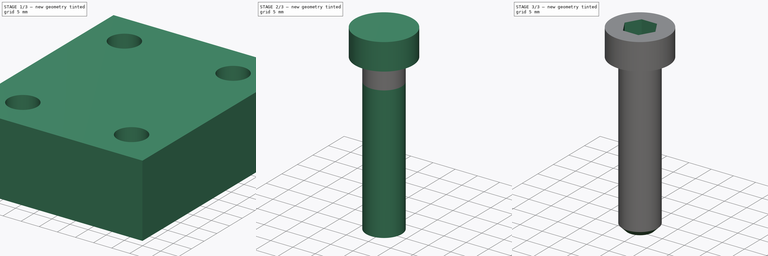
[diagram: build sequence overview — one tinted view per stage of 3, left to right]
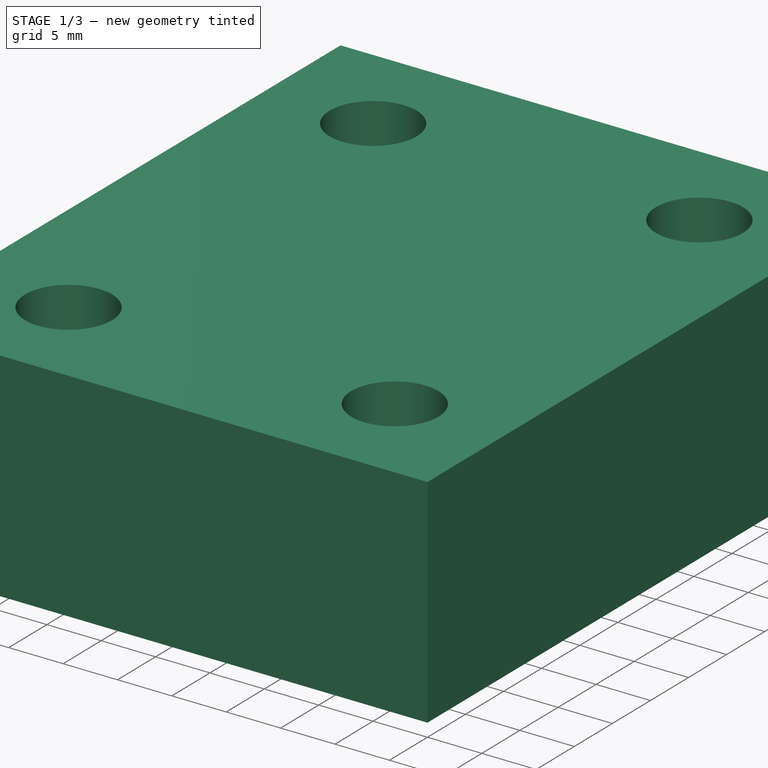
[diagram: stage 1 of 3 — iso view after this stage's code; geometry added in this stage tinted green]
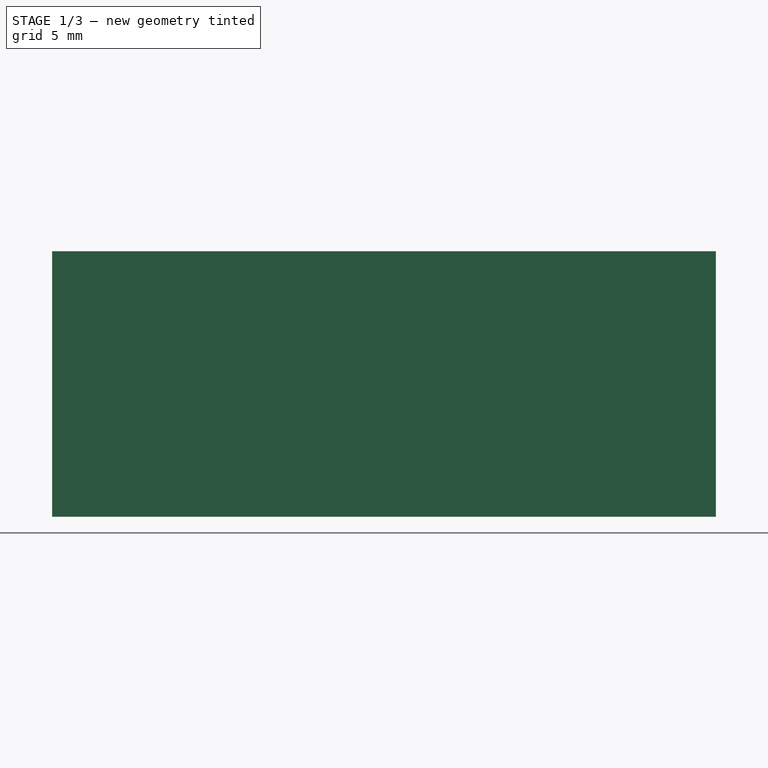
[diagram: stage 1 of 3 — front view after this stage's code; geometry added in this stage tinted green]
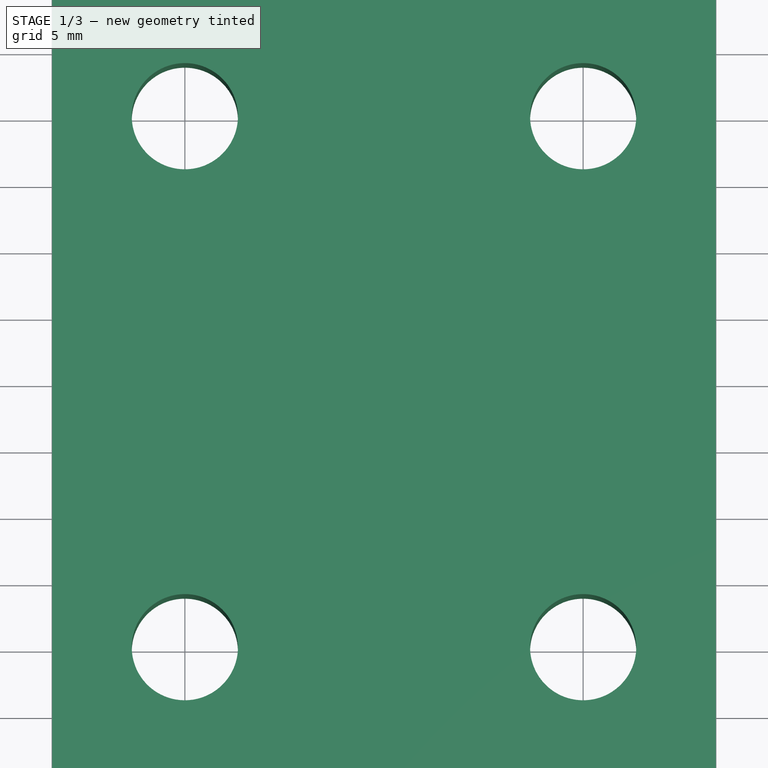
[diagram: stage 1 of 3 — top view after this stage's code; geometry added in this stage tinted green]
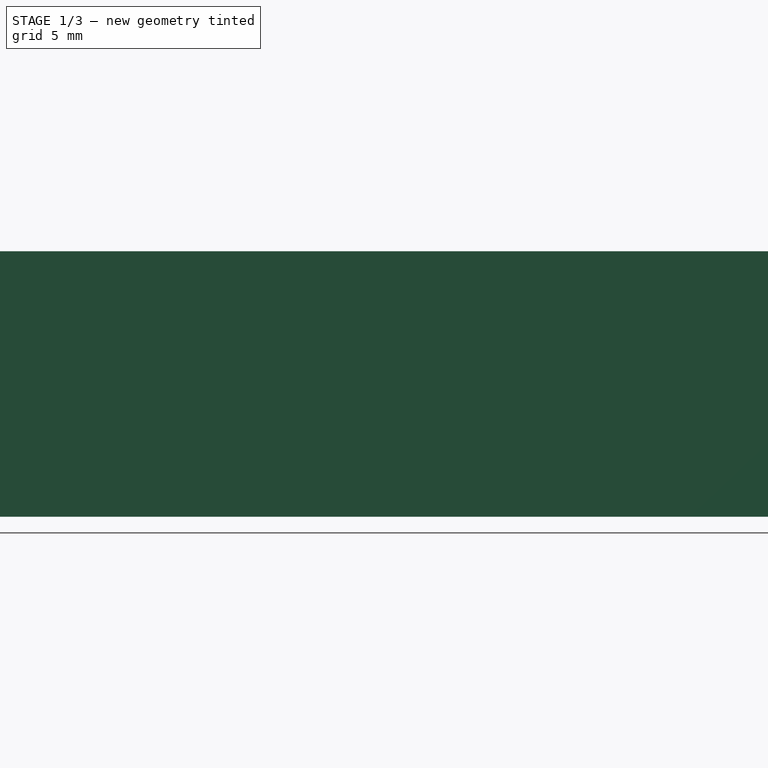
[diagram: stage 1 of 3 — right view after this stage's code; geometry added in this stage tinted green]
FCSTD DOCUMENT  (FreeCAD 0.19R17089 +1543 (Git))
Label: asm3-links-2
License: All rights reserved
LicenseURL: http://en.wikipedia.org/wiki/All_rights_reserved
objects: Part::FeaturePython×43, App::FeaturePython×42, App::Link×9, App::LinkElement×8, Sketcher::SketchObject×5, PartDesign::Pad×4, PartDesign::Body×2, PartDesign::Pocket×1, PartDesign::Chamfer×1, App::DocumentObjectGroup×1
note: 56 computed .brp shape members not serialized (recipe doc carries the construction recipe); baked Part::Feature solids carry a one-line shape summary decoded from their .brp
EXTERNAL_REF file=asm3-links-2-lib.FCStd obj=Assembly
EXTERNAL_REF file=asm3-links-2-lib.FCStd obj=Assembly001

FEATURE [Sketcher::SketchObject] Sketch002
  MapMode = 5
  Support = -> [XY_Plane002]
  sketch-geometry (1):
    g0: Circle CenterX=0 CenterY=0 CenterZ=0 NormalX=0 NormalY=0 NormalZ=1 AngleXU=0 Radius=4
  constraints (2):
    c: Coincident(g0,g-1)
    c: Diameter(g0) = 8  'D1'
FEATURE [PartDesign::Pad] Pad002
  ClaimChildren = false
  Length = 5
  Length2 = 100
  Profile = -> Sketch002
  Reversed = true
  Type = 0
FEATURE [PartDesign::Body] Body002
  Group = -> [Sketch002,Pad002,Sketch003,Pad003,Sketch004,Pad004,Sketch005,Pocket,Chamfer]
  Origin = -> Origin002
  Tip = -> Chamfer
FEATURE [App::FeaturePython] Constraints002  # WARN: FeaturePython — macro-defined, semantics opaque (R4)
  GroupMode = 1
  _Version = 1
FEATURE [Part::FeaturePython] Parts002  # WARN: FeaturePython — macro-defined, semantics opaque (R4)
  Group = -> [Body002]
  GroupMode = 0
FEATURE [Sketcher::SketchObject] Sketch006
  MapMode = 5
  Support = -> [XY_Plane003]
  sketch-geometry (8):
    g0: Circle CenterX=-15 CenterY=20 CenterZ=0 NormalX=0 NormalY=0 NormalZ=1 AngleXU=0 Radius=4
    g1: Circle CenterX=15 CenterY=20 CenterZ=0 NormalX=0 NormalY=0 NormalZ=1 AngleXU=0 Radius=4
    g2: Circle CenterX=15 CenterY=-20 CenterZ=0 NormalX=0 NormalY=0 NormalZ=1 AngleXU=0 Radius=4
    g3: Circle CenterX=-15 CenterY=-20 CenterZ=0 NormalX=0 NormalY=0 NormalZ=1 AngleXU=0 Radius=4
    g4: LineSegment StartX=-25 StartY=30 StartZ=0 EndX=25 EndY=30 EndZ=0
    g5: LineSegment StartX=25 StartY=30 StartZ=0 EndX=25 EndY=-30 EndZ=0
    g6: LineSegment StartX=25 StartY=-30 StartZ=0 EndX=-25 EndY=-30 EndZ=0
    g7: LineSegment StartX=-25 StartY=-30 StartZ=0 EndX=-25 EndY=30 EndZ=0
  constraints (19):
    c: Equal(g0,g1)
    c: Equal(g1,g2)
    c: Equal(g2,g3)
    c: Diameter(g0) = 8  'BHD'
    c: Symmetric(g0,g1,g-2)
    c: Symmetric(g1,g2,g-1)
    c: Symmetric(g0,g3,g-1)
    c: Coincident(g4,g5)
    c: Coincident(g5,g6)
    c: Coincident(g6,g7)
    c: Coincident(g7,g4)
    c: Horizontal(g6)
    c: Vertical(g7)
    c: Symmetric(g4,g4,g-2)
    c: Symmetric(g4,g5,g-1)
    c: Distance(g3,g2) = 30  'L1'
    c: Distance(g4) = 50  'L2'
    c: Distance(g1,g2) = 40  'W1'
    c: Distance(g7) = 60  'W2'
FEATURE [PartDesign::Pad] Pad005
  ClaimChildren = false
  Length = 20
  Length2 = 100
  Profile = -> Sketch006
  Reversed = true
  Type = 0
FEATURE [PartDesign::Body] Body003
  Group = -> [Sketch006,Pad005]
  Origin = -> Origin003
  Tip = -> Pad005
FEATURE [App::FeaturePython] Constraints003  # WARN: FeaturePython — macro-defined, semantics opaque (R4)
  GroupMode = 1
  _Version = 1
FEATURE [Part::FeaturePython] Parts003  # WARN: FeaturePython — macro-defined, semantics opaque (R4)
  Group = -> [Body003]
  GroupMode = 0
FEATURE [App::Link] Link  label="Assembly000 001"
  LinkPlacement = pos=(0,0,-2) rot=(0,0,1;0rad)
  LinkedObject = -> Link007
  Placement = pos=(0,0,-2) rot=(0,0,1;0rad)
FEATURE [App::Link] Link001  label="Assembly001 001"
  LinkedObject = -> Link008
FEATURE [Part::FeaturePython] Parts004  # WARN: FeaturePython — macro-defined, semantics opaque (R4)
  Group = -> [Link,Link001]
  GroupMode = 0
FEATURE [App::Link] Link002  label="Assembly000 002"
  LinkedObject = -> Link007
FEATURE [App::Link] Link003  label="Assembly002 001"
  LinkPlacement = pos=(0,0,2) rot=(0,0,1;0rad)
  LinkedObject = -> Assembly002
  Placement = pos=(0,0,2) rot=(0,0,1;0rad)
FEATURE [Part::FeaturePython] Parts005  # WARN: FeaturePython — macro-defined, semantics opaque (R4)
  Group = -> [Link002,Link003]
  GroupMode = 0
FEATURE [App::Link] Link004  label="Assembly003 001"
  LinkedObject = -> Assembly003
FEATURE [App::LinkElement] Link005_i0
  LinkPlacement = pos=(-15,20,0) rot=(0,0,1;0rad)
  LinkedObject = -> Assembly005
  Placement = pos=(-15,20,0) rot=(0,0,1;0rad)
FEATURE [App::LinkElement] Link005_i1
  LinkPlacement = pos=(15,20,0) rot=(0,0,1;0rad)
  LinkedObject = -> Assembly005
  Placement = pos=(15,20,0) rot=(0,0,1;0rad)
FEATURE [App::LinkElement] Link005_i2
  LinkPlacement = pos=(15,-20,0) rot=(0,0,1;0rad)
  LinkedObject = -> Assembly005
  Placement = pos=(15,-20,0) rot=(0,0,1;0rad)
FEATURE [App::LinkElement] Link005_i3
  LinkPlacement = pos=(-15,-20,0) rot=(0,0,1;0rad)
  LinkedObject = -> Assembly005
  Placement = pos=(-15,-20,0) rot=(0,0,1;0rad)
FEATURE [App::Link] Link005  label="Assembly005 001"
  ElementCount = 4
  ElementList = -> [Link005_i0,Link005_i1,Link005_i2,Link005_i3]
  LinkedObject = -> Assembly005
FEATURE [App::LinkElement] Link006_i0
  LinkPlacement = pos=(15,20,-33) rot=(0,-1,0;0rad)
  LinkedObject = -> Assembly004
  Placement = pos=(15,20,-33) rot=(0,-1,0;0rad)
FEATURE [App::LinkElement] Link006_i1
  LinkPlacement = pos=(-15,20,-33) rot=(0,-1,0;0rad)
  LinkedObject = -> Assembly004
  Placement = pos=(-15,20,-33) rot=(0,-1,0;0rad)
FEATURE [App::LinkElement] Link006_i2
  LinkPlacement = pos=(-15,-20,-33) rot=(0,-1,0;0rad)
  LinkedObject = -> Assembly004
  Placement = pos=(-15,-20,-33) rot=(0,-1,0;0rad)
FEATURE [App::LinkElement] Link006_i3
  LinkPlacement = pos=(15,-20,-33) rot=(0,-1,0;0rad)
  LinkedObject = -> Assembly004
  Placement = pos=(15,-20,-33) rot=(0,-1,0;0rad)
FEATURE [App::Link] Link006  label="Assembly004 001"
  ElementCount = 4
  ElementList = -> [Link006_i0,Link006_i1,Link006_i2,Link006_i3]
  LinkPlacement = pos=(8.1e-13,6.55651e-06,-55) rot=(0,1,0;3.14159rad)
  LinkedObject = -> Assembly004
  Placement = pos=(8.1e-13,6.55651e-06,-55) rot=(0,1,0;3.14159rad)
FEATURE [Part::FeaturePython] Parts006  # WARN: FeaturePython — macro-defined, semantics opaque (R4)
  Group = -> [Link004,Link005,Link006]
  GroupMode = 0
FEATURE [App::Link] Link007  label="Assembly000 003"
  LinkedObject = -> <external asm3-links-2-lib.FCStd>#Assembly
FEATURE [App::Link] Link008  label="Assembly001 002"
  LinkedObject = -> <external asm3-links-2-lib.FCStd>#Assembly001
FEATURE [App::DocumentObjectGroup] Group  label="Repository"
  Group = -> [Link007,Link008,Assembly002,Assembly003,Assembly004,Assembly005]
FEATURE [Part::FeaturePython] Assembly002  label="Assembly002 000"  # WARN: FeaturePython — macro-defined, semantics opaque (R4)
  AutoRelax = true
  BuildShape = 0
  Freeze = false
  Group = -> [Constraints002,Elements002,Parts002]
  GroupMode = 1
  SolverType = 1
  Verbose = false
  _SolverType = 1
  _Version = 1
FEATURE [App::FeaturePython] Elements002  # WARN: FeaturePython — macro-defined, semantics opaque (R4)
  Group = -> [Element004]
  GroupMode = 1
FEATURE [Part::FeaturePython] Element004  # link proxy (typed FeaturePython)
  Detach = false
  LinkTransform = true
  LinkedObject = -> Body002 [Pad002.Edge2]
  _Parent = -> Elements002
FEATURE [Part::FeaturePython] Assembly003  label="Assembly003 000"  # WARN: FeaturePython — macro-defined, semantics opaque (R4)
  AutoRelax = true
  BuildShape = 0
  Freeze = false
  Group = -> [Constraints003,Elements003,Parts003]
  GroupMode = 1
  SolverType = 1
  Verbose = false
  _SolverType = 1
  _Version = 1
FEATURE [App::FeaturePython] Elements003  # WARN: FeaturePython — macro-defined, semantics opaque (R4)
  Group = -> [Element005,Element006,Element007,Element008,Element009,Element010,Element011,Element012,Element015]
  GroupMode = 1
FEATURE [Part::FeaturePython] Element005  # link proxy (typed FeaturePython)
  Detach = false
  LinkTransform = true
  LinkedObject = -> Body003 [Pad005.Edge23]
  _Parent = -> Elements003
FEATURE [Part::FeaturePython] Element006  # link proxy (typed FeaturePython)
  Detach = false
  LinkTransform = true
  LinkedObject = -> Body003 [Pad005.Edge20]
  _Parent = -> Elements003
FEATURE [Part::FeaturePython] Element007  # link proxy (typed FeaturePython)
  Detach = false
  LinkTransform = true
  LinkedObject = -> Body003 [Pad005.Edge17]
  _Parent = -> Elements003
FEATURE [Part::FeaturePython] Element008  # link proxy (typed FeaturePython)
  Detach = false
  LinkTransform = true
  LinkedObject = -> Body003 [Pad005.Edge14]
  _Parent = -> Elements003
FEATURE [Part::FeaturePython] Element009  # link proxy (typed FeaturePython)
  Detach = false
  LinkTransform = true
  LinkedObject = -> Body003 [Pad005.Edge24]
  _Parent = -> Elements003
FEATURE [Part::FeaturePython] Element010  # link proxy (typed FeaturePython)
  Detach = false
  LinkTransform = true
  LinkedObject = -> Body003 [Pad005.Edge21]
  _Parent = -> Elements003
FEATURE [Part::FeaturePython] Element011  # link proxy (typed FeaturePython)
  Detach = false
  LinkTransform = true
  LinkedObject = -> Body003 [Pad005.Edge18]
  _Parent = -> Elements003
FEATURE [Part::FeaturePython] Element012  # link proxy (typed FeaturePython)
  Detach = false
  LinkTransform = true
  LinkedObject = -> Body003 [Pad005.Edge15]
  _Parent = -> Elements003
FEATURE [Part::FeaturePython] Assembly004  label="Assembly004 000"  # WARN: FeaturePython — macro-defined, semantics opaque (R4)
  AutoRelax = true
  BuildShape = 0
  Freeze = false
  Group = -> [Constraints004,Elements004,Parts004]
  GroupMode = 1
  SolverType = 1
  Verbose = false
  _SolverType = 1
  _Version = 1
FEATURE [App::FeaturePython] Constraints004  # WARN: FeaturePython — macro-defined, semantics opaque (R4)
  Group = -> [Constraint]
  GroupMode = 1
  _Version = 1
FEATURE [App::FeaturePython] Elements004  # WARN: FeaturePython — macro-defined, semantics opaque (R4)
  Group = -> [_Element,_Element001,Element013]
  GroupMode = 1
FEATURE [App::FeaturePython] Constraint  label="PlaneCoincident"  # WARN: FeaturePython — macro-defined, semantics opaque (R4)
  Angle = 0
  AnglePitch = 0
  AngleRoll = 0
  Cascade = false
  ConstraintType = 2
  Disabled = false
  Group = -> [ElementLink,ElementLink001]
  GroupMode = 1
  LockAngle = false
  Multiply = false
  OffsetX = 0
  OffsetY = 0
  _ConstraintType = 35
  _Parent = -> Constraints004
FEATURE [App::FeaturePython] ElementLink  label="_Element"  # link proxy (typed FeaturePython)
  LinkTransform = true
  LinkedObject = -> _Element
  _Parent = -> Constraint
FEATURE [Part::FeaturePython] _Element  # link proxy (typed FeaturePython)
  Detach = false
  LinkTransform = true
  LinkedObject = -> Link001 [1.$Element002.]
  _Parent = -> Elements004
FEATURE [App::FeaturePython] ElementLink001  label="_Element001"  # link proxy (typed FeaturePython)
  LinkTransform = true
  LinkedObject = -> _Element001
  _Parent = -> Constraint
FEATURE [Part::FeaturePython] _Element001  # link proxy (typed FeaturePython)
  Detach = false
  LinkTransform = true
  LinkedObject = -> Link [1.$Element001.]
  _Parent = -> Elements004
FEATURE [Part::FeaturePython] Element013  # link proxy (typed FeaturePython)
  Detach = false
  LinkTransform = true
  LinkedObject = -> Link [1.$Element.]
  _Parent = -> Elements004
FEATURE [Part::FeaturePython] Assembly005  label="Assembly005 000"  # WARN: FeaturePython — macro-defined, semantics opaque (R4)
  AutoRelax = true
  BuildShape = 0
  Freeze = false
  Group = -> [Constraints005,Elements005,Parts005]
  GroupMode = 1
  SolverType = 1
  Verbose = false
  _SolverType = 1
  _Version = 1
FEATURE [App::FeaturePython] Constraints005  # WARN: FeaturePython — macro-defined, semantics opaque (R4)
  Group = -> [Constraint001]
  GroupMode = 1
  _Version = 1
FEATURE [App::FeaturePython] Elements005  # WARN: FeaturePython — macro-defined, semantics opaque (R4)
  Group = -> [_Element002,_Element003,Element014]
  GroupMode = 1
FEATURE [App::FeaturePython] Constraint001  label="PlaneCoincident001"  # WARN: FeaturePython — macro-defined, semantics opaque (R4)
  Angle = 0
  AnglePitch = 0
  AngleRoll = 0
  Cascade = false
  ConstraintType = 2
  Disabled = false
  Group = -> [ElementLink002,ElementLink003]
  GroupMode = 1
  LockAngle = false
  Multiply = false
  OffsetX = 0
  OffsetY = 0
  _ConstraintType = 35
  _Parent = -> Constraints005
FEATURE [App::FeaturePython] ElementLink002  label="_Element002"  # link proxy (typed FeaturePython)
  LinkTransform = true
  LinkedObject = -> _Element002
  _Parent = -> Constraint001
FEATURE [Part::FeaturePython] _Element002  # link proxy (typed FeaturePython)
  Detach = false
  LinkTransform = true
  LinkedObject = -> Link002 [1.$Element001.]
  _Parent = -> Elements005
FEATURE [App::FeaturePython] ElementLink003  label="_Element003"  # link proxy (typed FeaturePython)
  LinkTransform = true
  LinkedObject = -> _Element003
  _Parent = -> Constraint001
FEATURE [Part::FeaturePython] _Element003  # link proxy (typed FeaturePython)
  Detach = false
  LinkTransform = true
  LinkedObject = -> Link003 [1.$Element004.]
  _Parent = -> Elements005
FEATURE [Part::FeaturePython] Element014  # link proxy (typed FeaturePython)
  Detach = false
  LinkTransform = true
  LinkedObject = -> Link002 [1.$Element.]
  _Parent = -> Elements005
FEATURE [Part::FeaturePython] Assembly006  label="Assembly006 000"  # WARN: FeaturePython — macro-defined, semantics opaque (R4)
  AutoRelax = true
  BuildShape = 0
  Freeze = false
  Group = -> [Constraints006,Elements006,Parts006]
  GroupMode = 1
  SolverType = 1
  Verbose = false
  _SolverType = 1
  _Version = 1
FEATURE [App::FeaturePython] Constraints006  # WARN: FeaturePython — macro-defined, semantics opaque (R4)
  Group = -> [Constraint002,Constraint003,Constraint004,Constraint005,Constraint006,Constraint007,Constraint008,Constraint009,Constraint010]
  GroupMode = 1
  _Version = 1
FEATURE [App::FeaturePython] Elements006  # WARN: FeaturePython — macro-defined, semantics opaque (R4)
  Group = -> [_Element004,_Element005,_Element006,_Element007,_Element008,_Element009,_Element010,_Element011,_Element012,_Element013,_Element014,_Element015,_Element016,_Element017,_Element018,_Element019,_Element020]
  GroupMode = 1
FEATURE [App::FeaturePython] Constraint002  label="Locked"  # WARN: FeaturePython — macro-defined, semantics opaque (R4)
  ConstraintType = 0
  Disabled = false
  Group = -> [ElementLink004]
  GroupMode = 1
  _ConstraintType = 0
  _Parent = -> Constraints006
FEATURE [App::FeaturePython] ElementLink004  label="_Element004"  # link proxy (typed FeaturePython)
  LinkTransform = true
  LinkedObject = -> _Element004
  _Parent = -> Constraint002
FEATURE [Part::FeaturePython] Element015  # link proxy (typed FeaturePython)
  Detach = false
  LinkTransform = true
  LinkedObject = -> Body003 [Pad005.Face9]
  _Parent = -> Elements003
FEATURE [Part::FeaturePython] _Element004  # link proxy (typed FeaturePython)
  Detach = false
  LinkTransform = true
  LinkedObject = -> Link004 [1.$Element015.]
  _Parent = -> Elements006
FEATURE [App::FeaturePython] Constraint003  label="PlaneCoincident002"  # WARN: FeaturePython — macro-defined, semantics opaque (R4)
  Angle = 0
  AnglePitch = 0
  AngleRoll = 0
  Cascade = false
  ConstraintType = 2
  Disabled = false
  Group = -> [ElementLink005,ElementLink006]
  GroupMode = 1
  LockAngle = false
  Multiply = false
  OffsetX = 0
  OffsetY = 0
  _ConstraintType = 35
  _Parent = -> Constraints006
FEATURE [App::FeaturePython] ElementLink005  label="_Element005"  # link proxy (typed FeaturePython)
  LinkTransform = true
  LinkedObject = -> _Element005
  _Parent = -> Constraint003
FEATURE [Part::FeaturePython] _Element005  # link proxy (typed FeaturePython)
  Detach = false
  LinkTransform = true
  LinkedObject = -> Link005 [Link005_i0.1.$Element014.]
  _Parent = -> Elements006
FEATURE [App::FeaturePython] ElementLink006  label="_Element006"  # link proxy (typed FeaturePython)
  LinkTransform = true
  LinkedObject = -> _Element006
  _Parent = -> Constraint003
FEATURE [Part::FeaturePython] _Element006  # link proxy (typed FeaturePython)
  Detach = false
  LinkTransform = true
  LinkedObject = -> Link004 [1.$Element005.]
  _Parent = -> Elements006
FEATURE [App::FeaturePython] Constraint004  label="PlaneCoincident003"  # WARN: FeaturePython — macro-defined, semantics opaque (R4)
  Angle = 0
  AnglePitch = 0
  AngleRoll = 0
  Cascade = false
  ConstraintType = 2
  Disabled = false
  Group = -> [ElementLink007,ElementLink008]
  GroupMode = 1
  LockAngle = false
  Multiply = false
  OffsetX = 0
  OffsetY = 0
  _ConstraintType = 35
  _Parent = -> Constraints006
FEATURE [App::FeaturePython] ElementLink007  label="_Element007"  # link proxy (typed FeaturePython)
  LinkTransform = true
  LinkedObject = -> _Element007
  _Parent = -> Constraint004
FEATURE [Part::FeaturePython] _Element007  # link proxy (typed FeaturePython)
  Detach = false
  LinkTransform = true
  LinkedObject = -> Link004 [1.$Element006.]
  _Parent = -> Elements006
FEATURE [App::FeaturePython] ElementLink008  label="_Element008"  # link proxy (typed FeaturePython)
  LinkTransform = true
  LinkedObject = -> _Element008
  _Parent = -> Constraint004
FEATURE [Part::FeaturePython] _Element008  # link proxy (typed FeaturePython)
  Detach = false
  LinkTransform = true
  LinkedObject = -> Link005 [Link005_i1.1.$Element014.]
  _Parent = -> Elements006
FEATURE [App::FeaturePython] Constraint005  label="PlaneCoincident004"  # WARN: FeaturePython — macro-defined, semantics opaque (R4)
  Angle = 0
  AnglePitch = 0
  AngleRoll = 0
  Cascade = false
  ConstraintType = 2
  Disabled = false
  Group = -> [ElementLink009,ElementLink010]
  GroupMode = 1
  LockAngle = false
  Multiply = false
  OffsetX = 0
  OffsetY = 0
  _ConstraintType = 35
  _Parent = -> Constraints006
FEATURE [App::FeaturePython] ElementLink009  label="_Element009"  # link proxy (typed FeaturePython)
  LinkTransform = true
  LinkedObject = -> _Element009
  _Parent = -> Constraint005
FEATURE [Part::FeaturePython] _Element009  # link proxy (typed FeaturePython)
  Detach = false
  LinkTransform = true
  LinkedObject = -> Link004 [1.$Element007.]
  _Parent = -> Elements006
FEATURE [App::FeaturePython] ElementLink010  label="_Element010"  # link proxy (typed FeaturePython)
  LinkTransform = true
  LinkedObject = -> _Element010
  _Parent = -> Constraint005
FEATURE [Part::FeaturePython] _Element010  # link proxy (typed FeaturePython)
  Detach = false
  LinkTransform = true
  LinkedObject = -> Link005 [Link005_i2.1.$Element014.]
  _Parent = -> Elements006
FEATURE [App::FeaturePython] Constraint006  label="PlaneCoincident005"  # WARN: FeaturePython — macro-defined, semantics opaque (R4)
  Angle = 0
  AnglePitch = 0
  AngleRoll = 0
  Cascade = false
  ConstraintType = 2
  Disabled = false
  Group = -> [ElementLink011,ElementLink012]
  GroupMode = 1
  LockAngle = false
  Multiply = false
  OffsetX = 0
  OffsetY = 0
  _ConstraintType = 35
  _Parent = -> Constraints006
FEATURE [App::FeaturePython] ElementLink011  label="_Element011"  # link proxy (typed FeaturePython)
  LinkTransform = true
  LinkedObject = -> _Element011
  _Parent = -> Constraint006
FEATURE [Part::FeaturePython] _Element011  # link proxy (typed FeaturePython)
  Detach = false
  LinkTransform = true
  LinkedObject = -> Link004 [1.$Element008.]
  _Parent = -> Elements006
FEATURE [App::FeaturePython] ElementLink012  label="_Element012"  # link proxy (typed FeaturePython)
  LinkTransform = true
  LinkedObject = -> _Element012
  _Parent = -> Constraint006
FEATURE [Part::FeaturePython] _Element012  # link proxy (typed FeaturePython)
  Detach = false
  LinkTransform = true
  LinkedObject = -> Link005 [Link005_i3.1.$Element014.]
  _Parent = -> Elements006
FEATURE [App::FeaturePython] Constraint007  label="PlaneCoincident006"  # WARN: FeaturePython — macro-defined, semantics opaque (R4)
  Angle = 0
  AnglePitch = 0
  AngleRoll = 0
  Cascade = false
  ConstraintType = 2
  Disabled = false
  Group = -> [ElementLink013,ElementLink014]
  GroupMode = 1
  LockAngle = false
  Multiply = false
  OffsetX = 0
  OffsetY = 0
  _ConstraintType = 35
  _Parent = -> Constraints006
FEATURE [App::FeaturePython] ElementLink013  label="_Element013"  # link proxy (typed FeaturePython)
  LinkTransform = true
  LinkedObject = -> _Element013
  _Parent = -> Constraint007
FEATURE [Part::FeaturePython] _Element013  # link proxy (typed FeaturePython)
  Detach = false
  LinkTransform = true
  LinkedObject = -> Link004 [1.$Element009.]
  _Parent = -> Elements006
FEATURE [App::FeaturePython] ElementLink014  label="_Element014"  # link proxy (typed FeaturePython)
  LinkTransform = true
  LinkedObject = -> _Element014
  _Parent = -> Constraint007
FEATURE [Part::FeaturePython] _Element014  # link proxy (typed FeaturePython)
  Detach = false
  LinkTransform = true
  LinkedObject = -> Link006 [Link006_i0.1.$Element013.]
  _Parent = -> Elements006
FEATURE [App::FeaturePython] Constraint008  label="PlaneCoincident007"  # WARN: FeaturePython — macro-defined, semantics opaque (R4)
  Angle = 0
  AnglePitch = 0
  AngleRoll = 0
  Cascade = false
  ConstraintType = 2
  Disabled = false
  Group = -> [ElementLink015,ElementLink016]
  GroupMode = 1
  LockAngle = false
  Multiply = false
  OffsetX = 0
  OffsetY = 0
  _ConstraintType = 35
  _Parent = -> Constraints006
FEATURE [App::FeaturePython] ElementLink015  label="_Element015"  # link proxy (typed FeaturePython)
  LinkTransform = true
  LinkedObject = -> _Element015
  _Parent = -> Constraint008
FEATURE [Part::FeaturePython] _Element015  # link proxy (typed FeaturePython)
  Detach = false
  LinkTransform = true
  LinkedObject = -> Link004 [1.$Element010.]
  _Parent = -> Elements006
FEATURE [App::FeaturePython] ElementLink016  label="_Element016"  # link proxy (typed FeaturePython)
  LinkTransform = true
  LinkedObject = -> _Element016
  _Parent = -> Constraint008
FEATURE [Part::FeaturePython] _Element016  # link proxy (typed FeaturePython)
  Detach = false
  LinkTransform = true
  LinkedObject = -> Link006 [Link006_i1.1.$Element013.]
  _Parent = -> Elements006
FEATURE [App::FeaturePython] Constraint009  label="PlaneCoincident008"  # WARN: FeaturePython — macro-defined, semantics opaque (R4)
  Angle = 0
  AnglePitch = 0
  AngleRoll = 0
  Cascade = false
  ConstraintType = 2
  Disabled = false
  Group = -> [ElementLink017,ElementLink018]
  GroupMode = 1
  LockAngle = false
  Multiply = false
  OffsetX = 0
  OffsetY = 0
  _ConstraintType = 35
  _Parent = -> Constraints006
FEATURE [App::FeaturePython] ElementLink017  label="_Element017"  # link proxy (typed FeaturePython)
  LinkTransform = true
  LinkedObject = -> _Element017
  _Parent = -> Constraint009
FEATURE [Part::FeaturePython] _Element017  # link proxy (typed FeaturePython)
  Detach = false
  LinkTransform = true
  LinkedObject = -> Link004 [1.$Element011.]
  _Parent = -> Elements006
FEATURE [App::FeaturePython] ElementLink018  label="_Element018"  # link proxy (typed FeaturePython)
  LinkTransform = true
  LinkedObject = -> _Element018
  _Parent = -> Constraint009
FEATURE [Part::FeaturePython] _Element018  # link proxy (typed FeaturePython)
  Detach = false
  LinkTransform = true
  LinkedObject = -> Link006 [Link006_i2.1.$Element013.]
  _Parent = -> Elements006
FEATURE [App::FeaturePython] Constraint010  label="PlaneCoincident009"  # WARN: FeaturePython — macro-defined, semantics opaque (R4)
  Angle = 0
  AnglePitch = 0
  AngleRoll = 0
  Cascade = false
  ConstraintType = 2
  Disabled = false
  Group = -> [ElementLink019,ElementLink020]
  GroupMode = 1
  LockAngle = false
  Multiply = false
  OffsetX = 0
  OffsetY = 0
  _ConstraintType = 35
  _Parent = -> Constraints006
FEATURE [App::FeaturePython] ElementLink019  label="_Element019"  # link proxy (typed FeaturePython)
  LinkTransform = true
  LinkedObject = -> _Element019
  _Parent = -> Constraint010
FEATURE [Part::FeaturePython] _Element019  # link proxy (typed FeaturePython)
  Detach = false
  LinkTransform = true
  LinkedObject = -> Link004 [1.$Element012.]
  _Parent = -> Elements006
FEATURE [App::FeaturePython] ElementLink020  label="_Element020"  # link proxy (typed FeaturePython)
  LinkTransform = true
  LinkedObject = -> _Element020
  _Parent = -> Constraint010
FEATURE [Part::FeaturePython] _Element020  # link proxy (typed FeaturePython)
  Detach = false
  LinkTransform = true
  LinkedObject = -> Link006 [Link006_i3.1.$Element013.]
  _Parent = -> Elements006
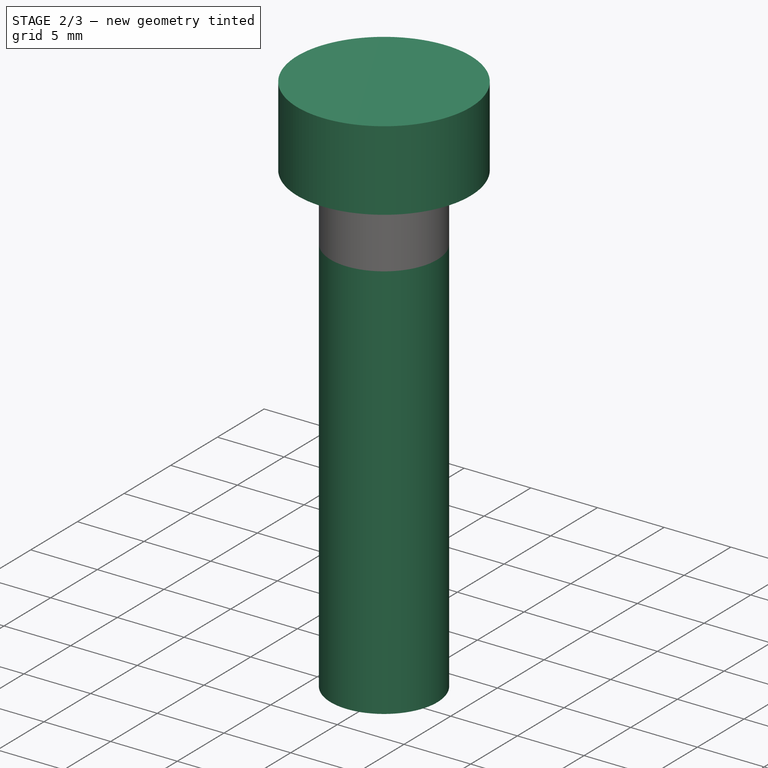
[diagram: stage 2 of 3 — iso view after this stage's code; geometry added in this stage tinted green]
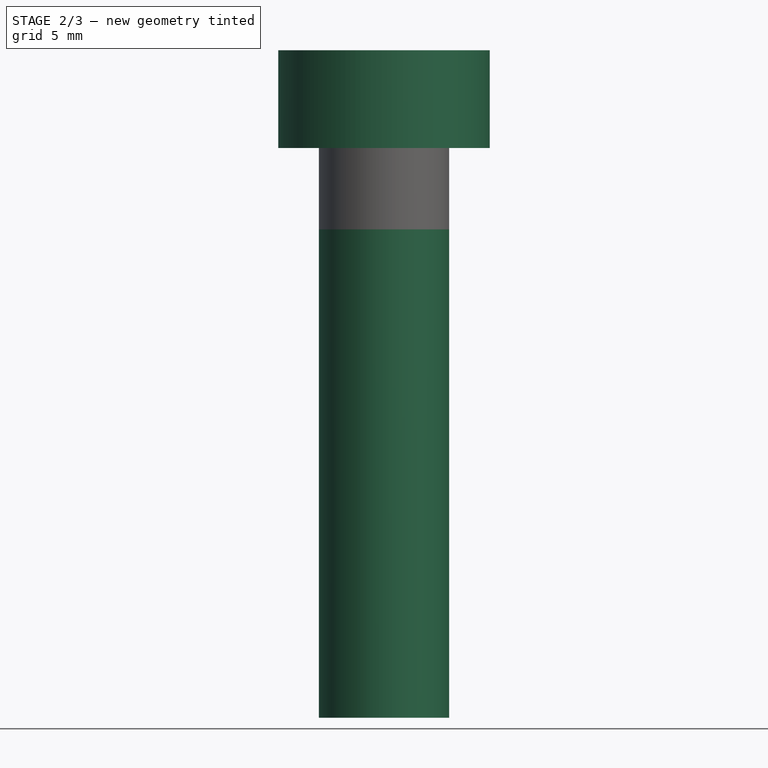
[diagram: stage 2 of 3 — front view after this stage's code; geometry added in this stage tinted green]
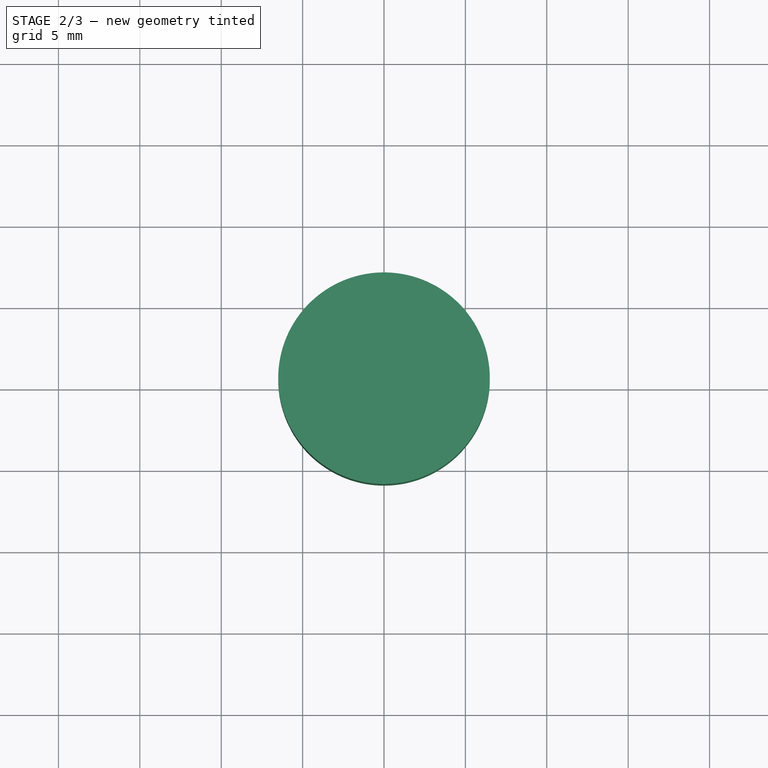
[diagram: stage 2 of 3 — top view after this stage's code; geometry added in this stage tinted green]
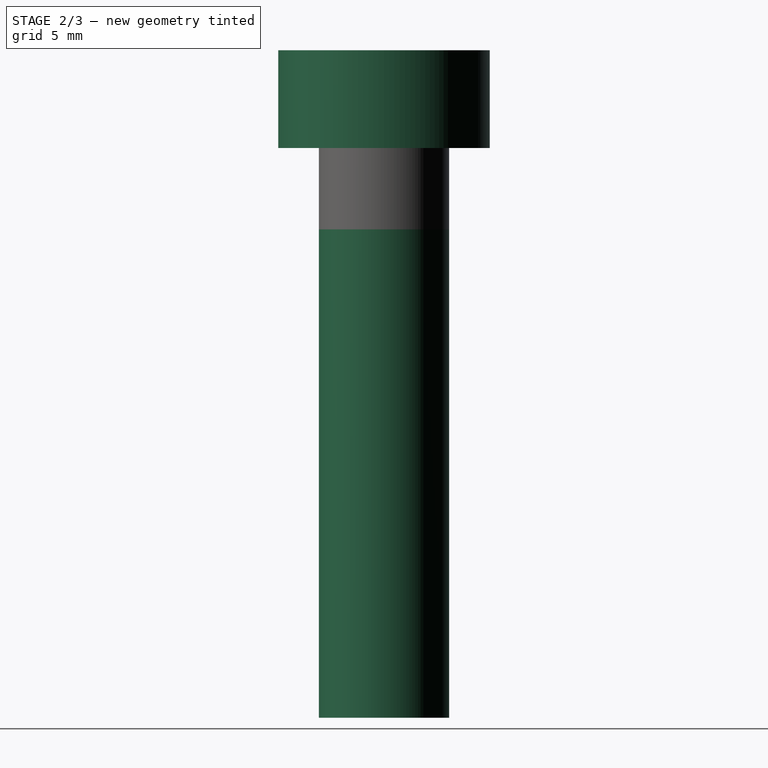
[diagram: stage 2 of 3 — right view after this stage's code; geometry added in this stage tinted green]
FEATURE [Sketcher::SketchObject] Sketch003
  ExternalGeometry = -> [Pad002]
  MapMode = 5
  Placement = pos=(0,0,-5) rot=(1,0,0;3.14159rad)
  Support = -> [Pad002]
FEATURE [PartDesign::Pad] Pad003
  BaseFeature = -> Pad002
  ClaimChildren = false
  Length = 30
  Length2 = 100
  Profile = -> Sketch003
  Type = 0
  expr: Length = Pad005.Length + 10mm
FEATURE [Sketcher::SketchObject] Sketch004
  MapMode = 5
  Support = -> [XY_Plane002]
  sketch-geometry (1):
    g0: Circle CenterX=0 CenterY=0 CenterZ=0 NormalX=0 NormalY=0 NormalZ=1 AngleXU=0 Radius=6.5
  constraints (2):
    c: Coincident(g0,g-1)
    c: Diameter(g0) = 13  'DH'
FEATURE [PartDesign::Pad] Pad004
  BaseFeature = -> Pad003
  ClaimChildren = false
  Length = 6
  Length2 = 100
  Profile = -> Sketch004
  Type = 0
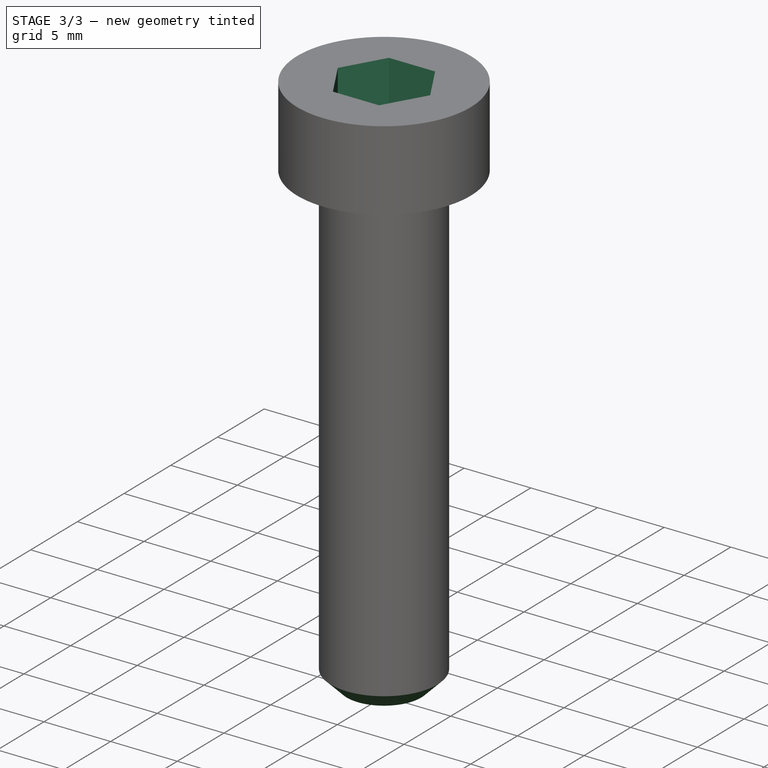
[diagram: stage 3 of 3 — iso view after this stage's code; geometry added in this stage tinted green]
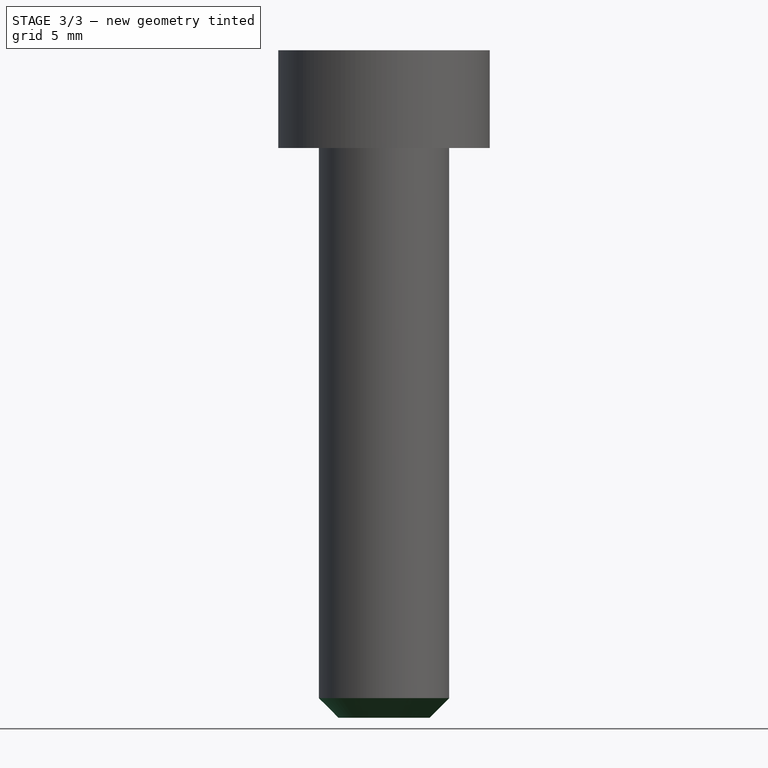
[diagram: stage 3 of 3 — front view after this stage's code; geometry added in this stage tinted green]
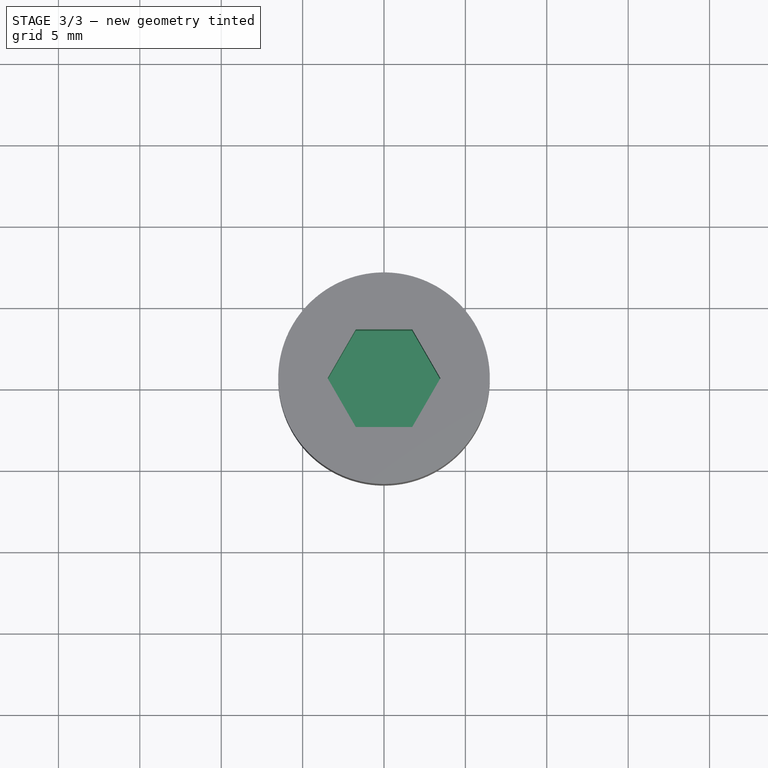
[diagram: stage 3 of 3 — top view after this stage's code; geometry added in this stage tinted green]
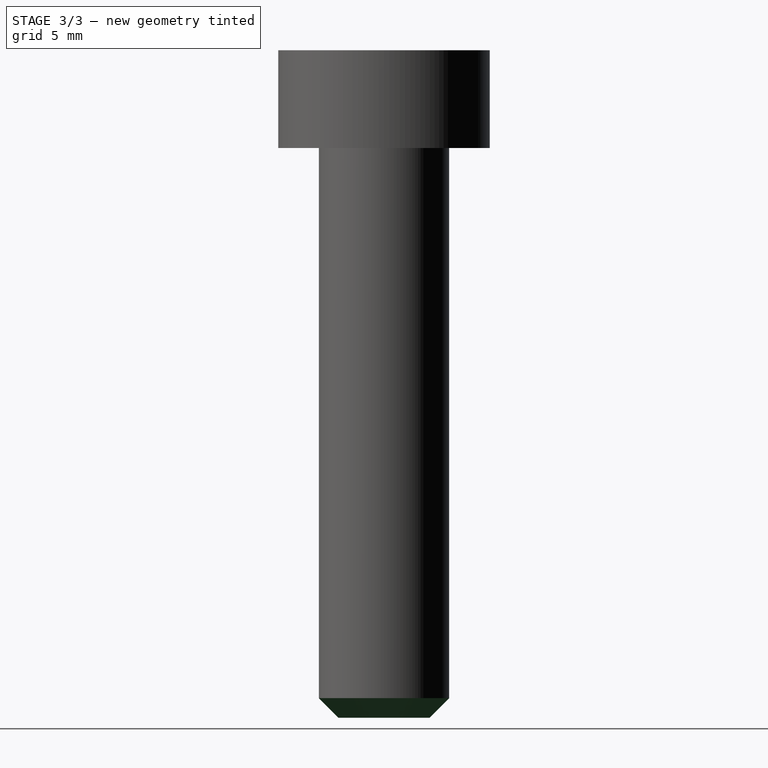
[diagram: stage 3 of 3 — right view after this stage's code; geometry added in this stage tinted green]
FEATURE [Sketcher::SketchObject] Sketch005
  MapMode = 5
  Placement = pos=(0,0,6) rot=(0,0,1;0rad)
  Support = -> [Pad004]
  sketch-geometry (7):
    g0: LineSegment StartX=3.4641 StartY=0 StartZ=0 EndX=1.73205 EndY=3 EndZ=0
    g1: LineSegment StartX=1.73205 StartY=3 StartZ=0 EndX=-1.73205 EndY=3 EndZ=0
    g2: LineSegment StartX=-1.73205 StartY=3 StartZ=0 EndX=-3.4641 EndY=0 EndZ=0
    g3: LineSegment StartX=-3.4641 StartY=0 StartZ=0 EndX=-1.73205 EndY=-3 EndZ=0
    g4: LineSegment StartX=-1.73205 StartY=-3 StartZ=0 EndX=1.73205 EndY=-3 EndZ=0
    g5: LineSegment StartX=1.73205 StartY=-3 StartZ=0 EndX=3.4641 EndY=0 EndZ=0
    g6: Circle [constr] CenterX=0 CenterY=0 CenterZ=0 NormalX=0 NormalY=0 NormalZ=1 AngleXU=0 Radius=3.4641
  constraints (16):
    c: Coincident(g0,g1)
    c: Coincident(g1,g2)
    c: Coincident(g2,g3)
    c: Coincident(g3,g4)
    c: Coincident(g4,g5)
    c: Coincident(g5,g0)
    c: Equal(g0, g1-g5) x5
    c: PointOnObject(g0,g6)
    c: PointOnObject(g1,g6)
    c: PointOnObject(g2,g6)
    c: PointOnObject(g3,g6)
    c: PointOnObject(g4,g6)
    c: PointOnObject(g5,g6)
    c: Coincident(g6,g-1)
    c: PointOnObject(g5,g-1)
    c: Distance(g0,g4) = 6  'WS'
FEATURE [PartDesign::Pocket] Pocket
  BaseFeature = -> Pad004
  ClaimChildren = false
  Length = 5
  Length2 = 100
  Profile = -> Sketch005
  Type = 0
FEATURE [PartDesign::Chamfer] Chamfer
  Base = -> Pocket [Edge6]
  BaseFeature = -> Pocket
  Size = 1.2
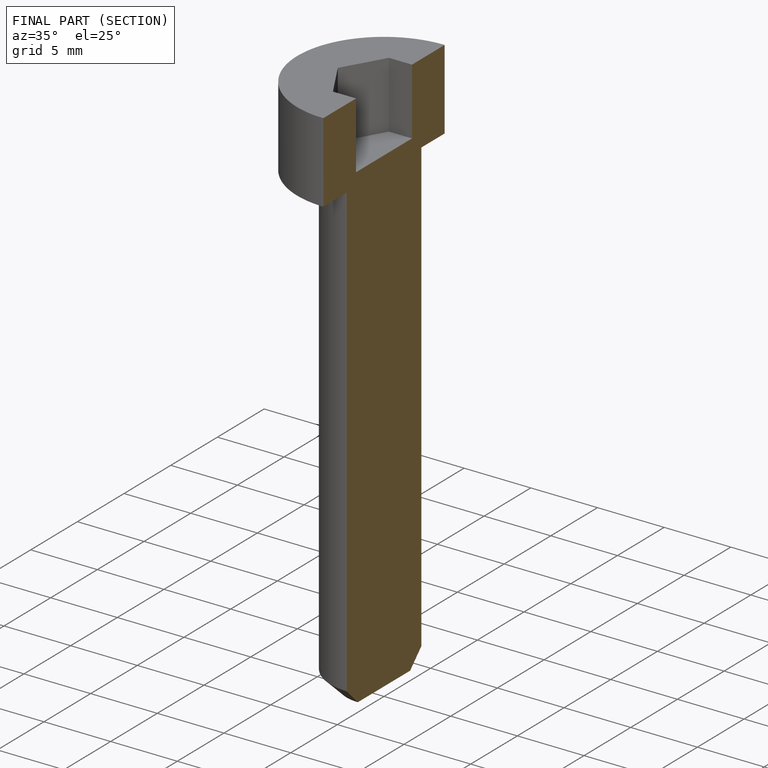
[diagram: finished part — half-section view (interior)]
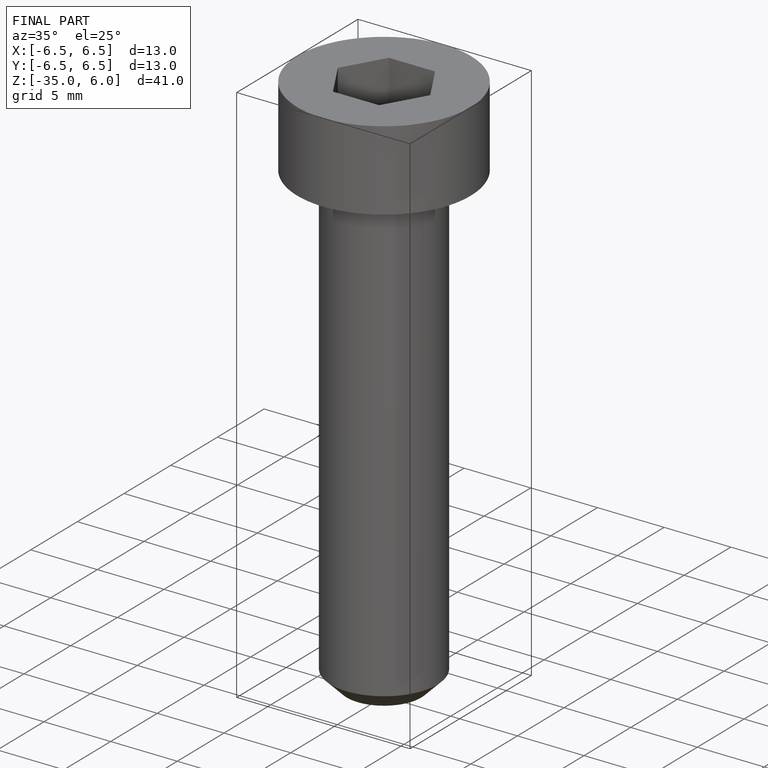
[diagram: finished part — iso view with bounding-box wireframe]
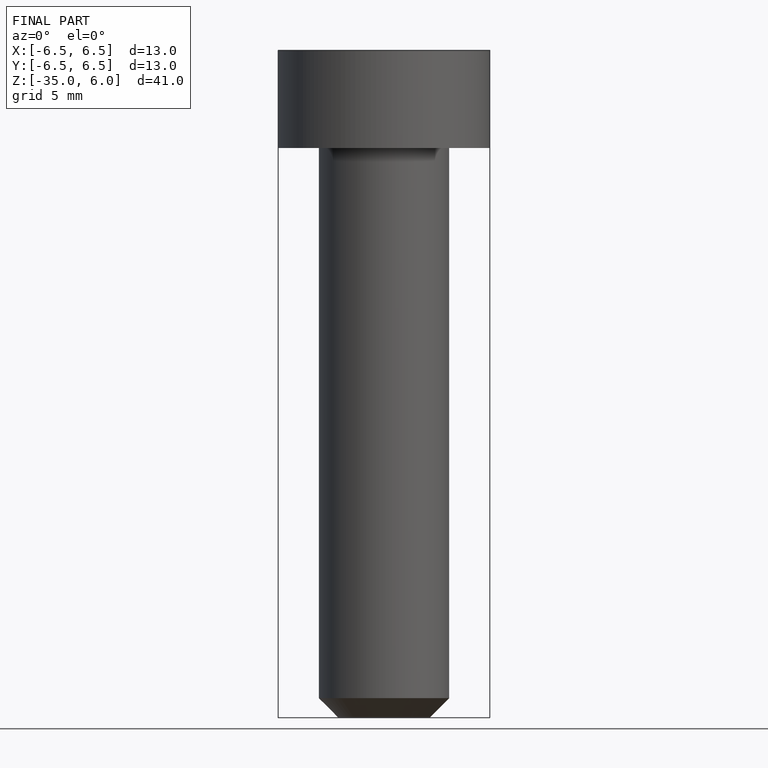
[diagram: finished part — front view with bounding-box wireframe]
